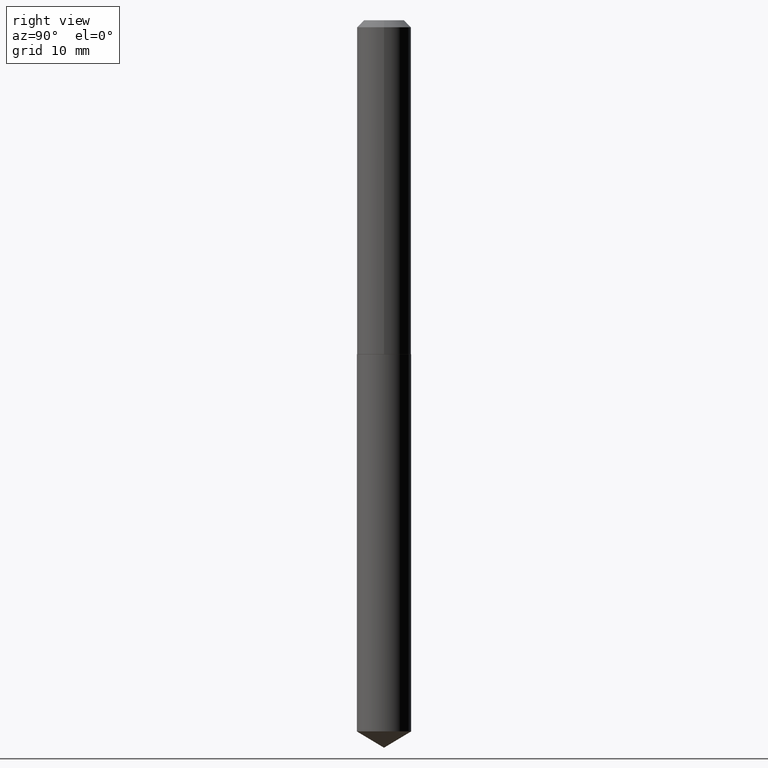
[diagram: clean part render]
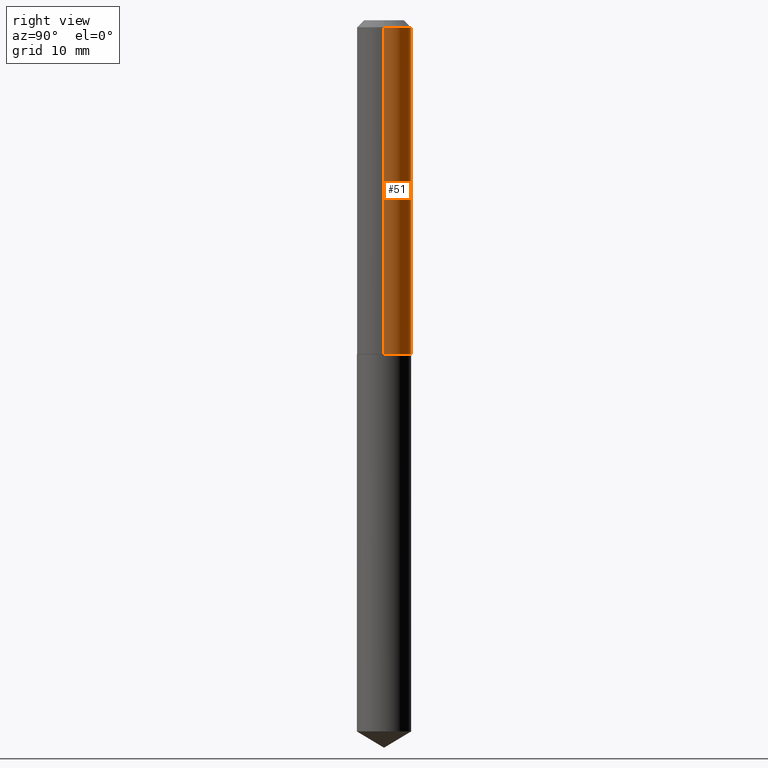
[diagram: same view with one face highlighted and labeled with its STEP entity id]
A machine part, right view. The second image highlights one B-rep face of the part: STEP entity #51.
In plain terms, the highlighted cylindrical surface (edge-blend (fillet) strip) has radius 3.0734 mm, axis along (-0, 0, 1).
Its self-contained STEP definition (entity closure, byte-faithful):
#5 = LINE ( 'NONE', #9, #340 ) ;
#9 = CARTESIAN_POINT ( 'NONE',  ( -0.1210000000000001075, 8.597567102697219885E-16, -5.951911459208441511E-30 ) ) ;
#22 = AXIS2_PLACEMENT_3D ( 'NONE', #268, #266, #61 ) ;
#29 = EDGE_CURVE ( 'NONE', #134, #369, #327, .T. ) ;
#40 = EDGE_CURVE ( 'NONE', #134, #307, #355, .T. ) ;
#51 = ADVANCED_FACE ( 'NONE', ( #354 ), #151, .T. ) ;
#61 = DIRECTION ( 'NONE',  ( 1.000000000000000000, -6.982962677686265922E-15, 0.000000000000000000 ) ) ;
#70 = DIRECTION ( 'NONE',  ( -2.445468806185136597E-29, 3.491481338843145583E-15, 1.000000000000000000 ) ) ;
#102 = CARTESIAN_POINT ( 'NONE',  ( 0.1210000000000000242, -9.540472758388873963E-16, -0.03125000000000020817 ) ) ;
#134 = VERTEX_POINT ( 'NONE', #235 ) ;
#136 = EDGE_LOOP ( 'NONE', ( #196, #160, #372, #287 ) ) ;
#144 = DIRECTION ( 'NONE',  ( -2.445468806185136877E-29, 3.491481338843145188E-15, 1.000000000000000000 ) ) ;
#150 = CARTESIAN_POINT ( 'NONE',  ( 0.1210000000000001075, -8.449384840000389859E-16, 5.900173898713087522E-30 ) ) ;
#151 = CYLINDRICAL_SURFACE ( 'NONE', #164, 0.1210000000000001075 ) ;
#157 = DIRECTION ( 'NONE',  ( 1.000000000000000000, -6.982962677686266711E-15, 0.000000000000000000 ) ) ;
#160 = ORIENTED_EDGE ( 'NONE', *, *, #244, .T. ) ;
#161 = VERTEX_POINT ( 'NONE', #329 ) ;
#164 = AXIS2_PLACEMENT_3D ( 'NONE', #174, #389, #169 ) ;
#169 = DIRECTION ( 'NONE',  ( 1.000000000000000000, -6.982962677686266711E-15, 4.876176775795935793E-29 ) ) ;
#174 = CARTESIAN_POINT ( 'NONE',  ( 0.000000000000000000, 0.000000000000000000, 0.000000000000000000 ) ) ;
#196 = ORIENTED_EDGE ( 'NONE', *, *, #40, .T. ) ;
#235 = CARTESIAN_POINT ( 'NONE',  ( 0.1210000000000001907, -6.052482900884591109E-15, -1.491500000000000270 ) ) ;
#238 = VECTOR ( 'NONE', #144, 39.37007874015748143 ) ;
#244 = EDGE_CURVE ( 'NONE', #307, #161, #5, .T. ) ;
#250 = EDGE_CURVE ( 'NONE', #369, #161, #303, .T. ) ;
#259 = AXIS2_PLACEMENT_3D ( 'NONE', #274, #70, #157 ) ;
#266 = DIRECTION ( 'NONE',  ( -2.445468806185136597E-29, 3.491481338843145583E-15, 1.000000000000000000 ) ) ;
#268 = CARTESIAN_POINT ( 'NONE',  ( 3.647416724425131194E-29, -5.207544416884551827E-15, -1.491500000000000270 ) ) ;
#274 = CARTESIAN_POINT ( 'NONE',  ( 7.642090019328602662E-31, -1.091087918388490267E-16, -0.03125000000000020817 ) ) ;
#287 = ORIENTED_EDGE ( 'NONE', *, *, #29, .F. ) ;
#303 = CIRCLE ( 'NONE', #259, 0.1210000000000000242 ) ;
#307 = VERTEX_POINT ( 'NONE', #345 ) ;
#327 = LINE ( 'NONE', #150, #238 ) ;
#329 = CARTESIAN_POINT ( 'NONE',  ( -0.1210000000000000242, -1.798569894091978081E-15, -0.03125000000000020817 ) ) ;
#340 = VECTOR ( 'NONE', #363, 39.37007874015748143 ) ;
#345 = CARTESIAN_POINT ( 'NONE',  ( -0.1210000000000001907, -4.347787706614829839E-15, -1.491500000000000270 ) ) ;
#354 = FACE_OUTER_BOUND ( 'NONE', #136, .T. ) ;
#355 = CIRCLE ( 'NONE', #22, 0.1210000000000001907 ) ;
#363 = DIRECTION ( 'NONE',  ( -2.445468806185136877E-29, 3.491481338843145188E-15, 1.000000000000000000 ) ) ;
#369 = VERTEX_POINT ( 'NONE', #102 ) ;
#372 = ORIENTED_EDGE ( 'NONE', *, *, #250, .F. ) ;
#389 = DIRECTION ( 'NONE',  ( -2.445468806185136597E-29, 3.491481338843145583E-15, 1.000000000000000000 ) ) ;